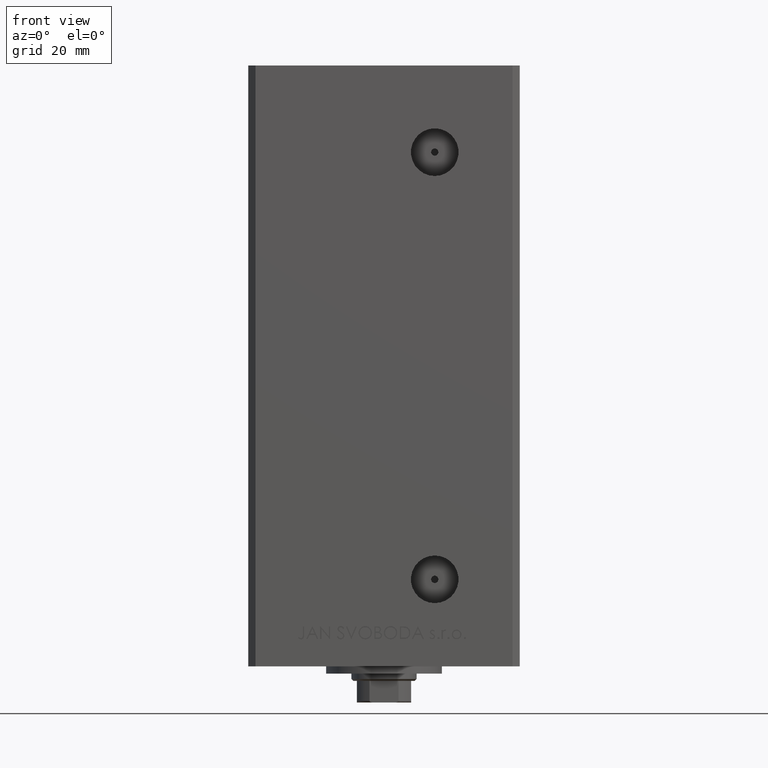
[diagram: clean part render]
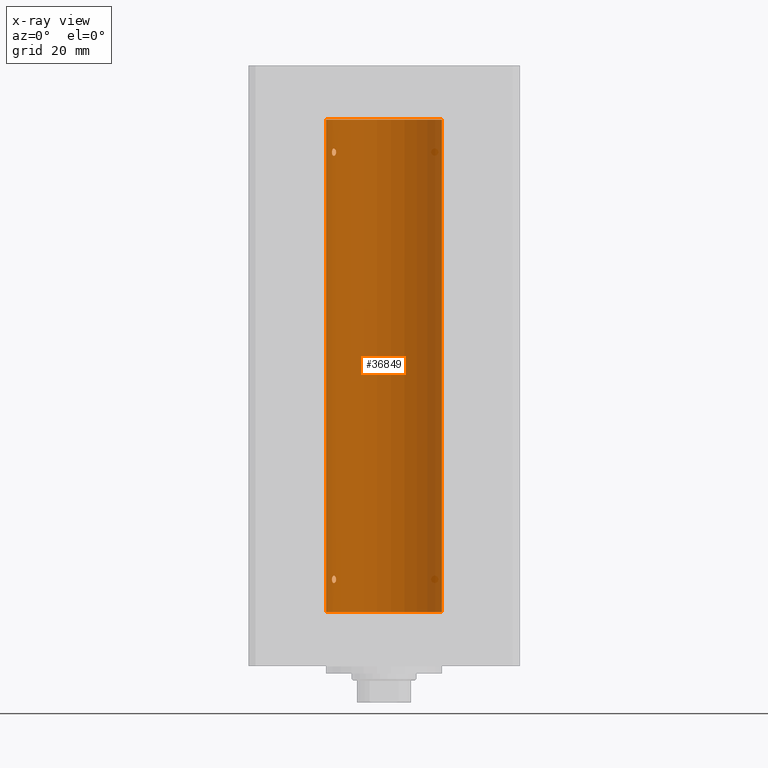
[diagram: x-ray — body ghosted, one internal face saturated and labeled with its STEP entity id]
A machine part, front view, then the same camera in x-ray: the body is ghosted and one INTERNAL B-rep face — a face not visible from any outside direction — is saturated and labeled: STEP entity #36849.
In plain terms, the highlighted cylindrical surface (partial cylindrical patch) has radius 16 mm, axis along (-0, -0, -1).
Its self-contained STEP definition (entity closure, byte-faithful):
#208 = CARTESIAN_POINT ( 'NONE',  ( -13.77582987033441952, 8.139210687602698613, 8.002110545841825129 ) ) ;
#550 = CARTESIAN_POINT ( 'NONE',  ( -13.77582987033440709, 8.139210687602719929, 126.0021105458418162 ) ) ;
#632 = EDGE_CURVE ( 'NONE', #44470, #22359, #10992, .T. ) ;
#900 = CARTESIAN_POINT ( 'NONE',  ( -14.27521483392928836, 7.227035590538638310, 127.6478598706881371 ) ) ;
#1064 = CARTESIAN_POINT ( 'NONE',  ( -13.22875655532296335, 8.999999999999982236, 9.000000000000007105 ) ) ;
#1297 = B_SPLINE_CURVE_WITH_KNOTS ( 'NONE', 3,
 ( #8946, #42834, #36054, #43326, #13210, #23764, #24253, #28275, #43076, #35308, #43819, #900, #2137, #37286, #6675, #5934 ),
 .UNSPECIFIED., .F., .F.,
 ( 4, 2, 2, 2, 2, 2, 2, 4 ),
 ( 0.003377672193071779884, 0.003799209865779855366, 0.004220747538487930849, 0.005063822883904134722, 0.005485360556612237093, 0.005906898229320339463, 0.006328435902028442701, 0.006749973574736545072 ),
 .UNSPECIFIED. ) ;
#1443 = CARTESIAN_POINT ( 'NONE',  ( -13.22875655532296513, 8.999999999999982236, 8.929565622361650412 ) ) ;
#1938 = CARTESIAN_POINT ( 'NONE',  ( -13.49759407097375608, 8.592283911330213186, 8.184099152127679133 ) ) ;
#2137 = CARTESIAN_POINT ( 'NONE',  ( -14.31650799088418147, 7.144337649771908438, 127.5355226273736662 ) ) ;
#2186 = CARTESIAN_POINT ( 'NONE',  ( -13.25390108270226364, 8.962947079338375644, 8.721435762358465738 ) ) ;
#2439 = CARTESIAN_POINT ( 'NONE',  ( -16.00000000000000000, 0.000000000000000000, 136.0000000000000000 ) ) ;
#2724 = EDGE_CURVE ( 'NONE', #21163, #9814, #1297, .T. ) ;
#2840 = VERTEX_POINT ( 'NONE', #42046 ) ;
#3609 = DIRECTION ( 'NONE',  ( 1.000000000000000000, 0.000000000000000000, 0.000000000000000000 ) ) ;
#3992 = CARTESIAN_POINT ( 'NONE',  ( -14.27547848986623258, 7.226527013162171720, 8.352555730181538962 ) ) ;
#4100 = CARTESIAN_POINT ( 'NONE',  ( -14.31650799088419213, 7.144337649771898668, 9.535522627373698157 ) ) ;
#4150 = DIRECTION ( 'NONE',  ( -0.000000000000000000, -0.000000000000000000, -1.000000000000000000 ) ) ;
#4281 = ORIENTED_EDGE ( 'NONE', *, *, #20996, .F. ) ;
#4335 = CARTESIAN_POINT ( 'NONE',  ( -14.11621438951177687, 7.533308783217008475, 126.1065710718394826 ) ) ;
#4730 = CARTESIAN_POINT ( 'NONE',  ( -14.11621438951178575, 7.533308783216997817, 8.106571071839523412 ) ) ;
#5011 = ORIENTED_EDGE ( 'NONE', *, *, #38640, .F. ) ;
#5934 = CARTESIAN_POINT ( 'NONE',  ( -14.38749456993815912, 6.999999999999998224, 127.0000000000000000 ) ) ;
#6124 = CARTESIAN_POINT ( 'NONE',  ( -14.38749456993815912, 6.999999999999998224, 127.0000000000000000 ) ) ;
#6675 = CARTESIAN_POINT ( 'NONE',  ( -14.38749456993815734, 6.999999999999997335, 127.1426254415242454 ) ) ;
#6696 = LINE ( 'NONE', #8422, #31408 ) ;
#6752 = EDGE_CURVE ( 'NONE', #30185, #45196, #45241, .T. ) ;
#7040 = VECTOR ( 'NONE', #12888, 1000.000000000000000 ) ;
#7615 = CARTESIAN_POINT ( 'NONE',  ( -14.17528142432533755, 7.421143801852455368, 126.1739430735386520 ) ) ;
#7827 = CARTESIAN_POINT ( 'NONE',  ( -14.38749456993815912, 6.999999999999998224, 127.0000000000000000 ) ) ;
#8013 = CARTESIAN_POINT ( 'NONE',  ( -13.56386909142670660, 8.487613976483618927, 8.118224297996086136 ) ) ;
#8113 = CARTESIAN_POINT ( 'NONE',  ( -13.22875655532295802, 8.999999999999996447, 127.0000000000000000 ) ) ;
#8261 = CARTESIAN_POINT ( 'NONE',  ( -14.38749456993816445, 6.999999999999982236, 8.857147409635420132 ) ) ;
#8361 = CARTESIAN_POINT ( 'NONE',  ( -14.31660136508398828, 7.144151923086063505, 126.4646217954444580 ) ) ;
#8422 = CARTESIAN_POINT ( 'NONE',  ( -16.00000000000000000, 0.000000000000000000, 136.0000000000000000 ) ) ;
#8505 = CARTESIAN_POINT ( 'NONE',  ( -14.31660136508400072, 7.144151923086045741, 8.464621795444484675 ) ) ;
#8946 = CARTESIAN_POINT ( 'NONE',  ( -13.22875655532295802, 8.999999999999996447, 127.0000000000000000 ) ) ;
#9814 = VERTEX_POINT ( 'NONE', #7827 ) ;
#9987 = CARTESIAN_POINT ( 'NONE',  ( -13.26838749541401263, 8.941532915076029653, 8.656217793921380022 ) ) ;
#10990 = FACE_OUTER_BOUND ( 'NONE', #43397, .T. ) ;
#10992 = B_SPLINE_CURVE_WITH_KNOTS ( 'NONE', 3,
 ( #38369, #8261, #23810, #8505, #3992, #19309, #4730, #20047, #35358, #208, #46168, #8013, #1938, #47889, #33081, #9987, #2186, #36833, #1443, #13499 ),
 .UNSPECIFIED., .F., .F.,
 ( 4, 2, 2, 2, 2, 2, 2, 2, 2, 4 ),
 ( 0.000000000000000000, 0.0004222090241339719434, 0.0008444180482679438868, 0.001266627072401915830, 0.001688836096535887774, 0.002111045120669859717, 0.002533254144803831660, 0.002955463168937803604, 0.003166567681004789359, 0.003377672193071775547 ),
 .UNSPECIFIED. ) ;
#11631 = CARTESIAN_POINT ( 'NONE',  ( -13.91838063522421010, 7.892966471903945624, 125.9981483133086897 ) ) ;
#11886 = CARTESIAN_POINT ( 'NONE',  ( -13.55800260393082901, 8.498809056167502263, 9.903643446210180556 ) ) ;
#12622 = CARTESIAN_POINT ( 'NONE',  ( -14.27521483392929902, 7.227035590538620546, 9.647859870688199280 ) ) ;
#12888 = DIRECTION ( 'NONE',  ( -0.000000000000000000, -0.000000000000000000, -1.000000000000000000 ) ) ;
#13210 = CARTESIAN_POINT ( 'NONE',  ( -13.37741691572086111, 8.778212469423007036, 127.6408828602271512 ) ) ;
#13350 = DIRECTION ( 'NONE',  ( 1.000000000000000000, 0.000000000000000000, 0.000000000000000000 ) ) ;
#13499 = CARTESIAN_POINT ( 'NONE',  ( -13.22875655532296335, 8.999999999999982236, 9.000000000000007105 ) ) ;
#13582 = DIRECTION ( 'NONE',  ( -1.000000000000000000, 0.000000000000000000, 0.000000000000000000 ) ) ;
#14389 = CIRCLE ( 'NONE', #15214, 16.00000000000000000 ) ;
#15214 = AXIS2_PLACEMENT_3D ( 'NONE', #46522, #30478, #3609 ) ;
#16308 = CARTESIAN_POINT ( 'NONE',  ( -14.38749456993816800, 6.999999999999984013, 9.000000000000007105 ) ) ;
#16822 = B_SPLINE_CURVE_WITH_KNOTS ( 'NONE', 3,
 ( #1064, #19170, #46268, #19419, #27693, #11886, #31706, #46027, #27448, #30716, #19660, #12622, #4100, #46764, #20150, #31458 ),
 .UNSPECIFIED., .F., .F.,
 ( 4, 2, 2, 2, 2, 2, 2, 4 ),
 ( 0.003377672193071775547, 0.003799209865779873581, 0.004220747538487971615, 0.005063822883904167682, 0.005485360556612266583, 0.005906898229320366352, 0.006328435902028466120, 0.006749973574736565021 ),
 .UNSPECIFIED. ) ;
#17342 = CARTESIAN_POINT ( 'NONE',  ( 0.000000000000000000, 0.000000000000000000, 136.0000000000000000 ) ) ;
#17667 = CARTESIAN_POINT ( 'NONE',  ( -14.38749456993816267, 6.999999999999999112, 126.8571474096354450 ) ) ;
#19111 = CARTESIAN_POINT ( 'NONE',  ( 16.00000000000000000, 1.959434878635765131E-15, 136.0000000000000000 ) ) ;
#19170 = CARTESIAN_POINT ( 'NONE',  ( -13.22875655532296335, 8.999999999999978684, 9.140644760917750133 ) ) ;
#19309 = CARTESIAN_POINT ( 'NONE',  ( -14.17528142432534288, 7.421143801852442934, 8.173943073538671555 ) ) ;
#19409 = CARTESIAN_POINT ( 'NONE',  ( -13.49759407097375075, 8.592283911330223845, 126.1840991521276862 ) ) ;
#19419 = CARTESIAN_POINT ( 'NONE',  ( -13.32457971225033866, 8.857769707964637362, 9.531999662746560631 ) ) ;
#19650 = CARTESIAN_POINT ( 'NONE',  ( -13.37674940693422876, 8.779234808442867077, 126.3602441571267718 ) ) ;
#19660 = CARTESIAN_POINT ( 'NONE',  ( -14.17576283486775779, 7.420212263225971050, 9.825253034304363808 ) ) ;
#19711 = EDGE_CURVE ( 'NONE', #30185, #46439, #28690, .T. ) ;
#20047 = CARTESIAN_POINT ( 'NONE',  ( -13.98699950016873039, 7.770591669637105348, 8.018476816648488992 ) ) ;
#20150 = CARTESIAN_POINT ( 'NONE',  ( -14.38749456993816978, 6.999999999999985789, 9.142625441524216967 ) ) ;
#20996 = EDGE_CURVE ( 'NONE', #22359, #44470, #16822, .T. ) ;
#21133 = CARTESIAN_POINT ( 'NONE',  ( 0.000000000000000000, 0.000000000000000000, 136.0000000000000000 ) ) ;
#21163 = VERTEX_POINT ( 'NONE', #42500 ) ;
#22359 = VERTEX_POINT ( 'NONE', #31889 ) ;
#23667 = CARTESIAN_POINT ( 'NONE',  ( -13.22875655532295625, 8.999999999999994671, 126.9295656223616220 ) ) ;
#23764 = CARTESIAN_POINT ( 'NONE',  ( -13.55800260393081835, 8.498809056167509368, 127.9036434462101681 ) ) ;
#23810 = CARTESIAN_POINT ( 'NONE',  ( -14.37250282441144655, 7.031013007322923336, 8.716856996037272154 ) ) ;
#24253 = CARTESIAN_POINT ( 'NONE',  ( -13.70792461986390798, 8.256614593260307444, 127.9966215356423191 ) ) ;
#25314 = CARTESIAN_POINT ( 'NONE',  ( 16.00000000000000000, 1.959434878635765131E-15, 0.000000000000000000 ) ) ;
#26453 = CARTESIAN_POINT ( 'NONE',  ( -13.26838749541400908, 8.941532915076043864, 126.6562177939213854 ) ) ;
#27448 = CARTESIAN_POINT ( 'NONE',  ( -13.98878315975730224, 7.767347947480332415, 9.980546143261287639 ) ) ;
#27539 = ORIENTED_EDGE ( 'NONE', *, *, #44962, .T. ) ;
#27693 = CARTESIAN_POINT ( 'NONE',  ( -13.37741691572086467, 8.778212469422998154, 9.640882860227108608 ) ) ;
#28275 = CARTESIAN_POINT ( 'NONE',  ( -13.91892506969882071, 7.891973478508848672, 128.0015521226323472 ) ) ;
#28690 = LINE ( 'NONE', #36222, #7040 ) ;
#29243 = EDGE_LOOP ( 'NONE', ( #33112, #4281 ) ) ;
#30185 = VERTEX_POINT ( 'NONE', #19111 ) ;
#30464 = CARTESIAN_POINT ( 'NONE',  ( -13.23400746336172240, 8.992294519018086518, 126.8578145590230406 ) ) ;
#30478 = DIRECTION ( 'NONE',  ( -0.000000000000000000, 0.000000000000000000, 1.000000000000000000 ) ) ;
#30716 = CARTESIAN_POINT ( 'NONE',  ( -14.11618354197462644, 7.533333301880464461, 9.893207651933423108 ) ) ;
#31408 = VECTOR ( 'NONE', #4150, 1000.000000000000000 ) ;
#31448 = CARTESIAN_POINT ( 'NONE',  ( -13.25390108270225120, 8.962947079338391632, 126.7214357623584817 ) ) ;
#31458 = CARTESIAN_POINT ( 'NONE',  ( -14.38749456993816800, 6.999999999999984013, 9.000000000000007105 ) ) ;
#31706 = CARTESIAN_POINT ( 'NONE',  ( -13.70792461986391864, 8.256614593260295010, 9.996621535642280065 ) ) ;
#31889 = CARTESIAN_POINT ( 'NONE',  ( -13.22875655532296335, 8.999999999999982236, 9.000000000000007105 ) ) ;
#32433 = DIRECTION ( 'NONE',  ( -0.000000000000000000, 0.000000000000000000, 1.000000000000000000 ) ) ;
#32985 = CARTESIAN_POINT ( 'NONE',  ( -14.37250282441143945, 7.031013007322939323, 126.7168569960372935 ) ) ;
#33081 = CARTESIAN_POINT ( 'NONE',  ( -13.32426099938365915, 8.858246960865836073, 8.468874877532975631 ) ) ;
#33112 = ORIENTED_EDGE ( 'NONE', *, *, #632, .F. ) ;
#34318 = FACE_BOUND ( 'NONE', #37953, .T. ) ;
#34960 = CARTESIAN_POINT ( 'NONE',  ( -13.32426099938365383, 8.858246960865844954, 126.4688748775329969 ) ) ;
#35308 = CARTESIAN_POINT ( 'NONE',  ( -14.11618354197461400, 7.533333301880474231, 127.8932076519334373 ) ) ;
#35358 = CARTESIAN_POINT ( 'NONE',  ( -13.91838063522421542, 7.892966471903923420, 7.998148313308686141 ) ) ;
#36054 = CARTESIAN_POINT ( 'NONE',  ( -13.24976519864029179, 8.969293778684573226, 127.2815352263351514 ) ) ;
#36222 = CARTESIAN_POINT ( 'NONE',  ( 16.00000000000000000, 1.959434878635765131E-15, 136.0000000000000000 ) ) ;
#36419 = AXIS2_PLACEMENT_3D ( 'NONE', #21133, #32433, #13350 ) ;
#36833 = CARTESIAN_POINT ( 'NONE',  ( -13.23400746336173484, 8.992294519018072307, 8.857814559023026391 ) ) ;
#36849 = ADVANCED_FACE ( 'NONE', ( #10990, #40681, #34318 ), #38077, .F. ) ;
#37286 = CARTESIAN_POINT ( 'NONE',  ( -14.37227256866306213, 7.031482256185711321, 127.2844572409764794 ) ) ;
#37296 = B_SPLINE_CURVE_WITH_KNOTS ( 'NONE', 3,
 ( #6124, #17667, #32985, #8361, #42242, #7615, #4335, #46018, #11631, #550, #42740, #46758, #19409, #19650, #34960, #26453, #31448, #30464, #23667, #8113 ),
 .UNSPECIFIED., .F., .F.,
 ( 4, 2, 2, 2, 2, 2, 2, 2, 2, 4 ),
 ( 0.000000000000000000, 0.0004222090241339633240, 0.0008444180482679266480, 0.001266627072401889809, 0.001688836096535853296, 0.002111045120669816783, 0.002533254144803779619, 0.002955463168937742888, 0.003166567681004761603, 0.003377672193071779884 ),
 .UNSPECIFIED. ) ;
#37953 = EDGE_LOOP ( 'NONE', ( #42096, #39923 ) ) ;
#38077 = CYLINDRICAL_SURFACE ( 'NONE', #40753, 16.00000000000000000 ) ;
#38369 = CARTESIAN_POINT ( 'NONE',  ( -14.38749456993816800, 6.999999999999984013, 9.000000000000007105 ) ) ;
#38640 = EDGE_CURVE ( 'NONE', #46439, #2840, #14389, .T. ) ;
#39923 = ORIENTED_EDGE ( 'NONE', *, *, #2724, .F. ) ;
#40681 = FACE_BOUND ( 'NONE', #29243, .T. ) ;
#40753 = AXIS2_PLACEMENT_3D ( 'NONE', #17342, #49398, #13582 ) ;
#42046 = CARTESIAN_POINT ( 'NONE',  ( -16.00000000000000000, 0.000000000000000000, 0.000000000000000000 ) ) ;
#42096 = ORIENTED_EDGE ( 'NONE', *, *, #48839, .F. ) ;
#42242 = CARTESIAN_POINT ( 'NONE',  ( -14.27547848986622370, 7.226527013162184154, 126.3525557301815354 ) ) ;
#42500 = CARTESIAN_POINT ( 'NONE',  ( -13.22875655532295802, 8.999999999999996447, 127.0000000000000000 ) ) ;
#42740 = CARTESIAN_POINT ( 'NONE',  ( -13.70481462797717676, 8.258098555717509726, 126.0259974772911562 ) ) ;
#42834 = CARTESIAN_POINT ( 'NONE',  ( -13.22875655532296157, 8.999999999999994671, 127.1406447609177661 ) ) ;
#43076 = CARTESIAN_POINT ( 'NONE',  ( -13.98878315975728803, 7.767347947480344850, 127.9805461432612645 ) ) ;
#43326 = CARTESIAN_POINT ( 'NONE',  ( -13.32457971225032622, 8.857769707964648020, 127.5319996627465571 ) ) ;
#43397 = EDGE_LOOP ( 'NONE', ( #48834, #45754, #27539, #5011 ) ) ;
#43819 = CARTESIAN_POINT ( 'NONE',  ( -14.17576283486774891, 7.420212263225987925, 127.8252530343043958 ) ) ;
#44470 = VERTEX_POINT ( 'NONE', #16308 ) ;
#44962 = EDGE_CURVE ( 'NONE', #45196, #2840, #6696, .T. ) ;
#45196 = VERTEX_POINT ( 'NONE', #2439 ) ;
#45241 = CIRCLE ( 'NONE', #36419, 16.00000000000000000 ) ;
#45754 = ORIENTED_EDGE ( 'NONE', *, *, #6752, .T. ) ;
#46018 = CARTESIAN_POINT ( 'NONE',  ( -13.98699950016872151, 7.770591669637114229, 126.0184768166484588 ) ) ;
#46027 = CARTESIAN_POINT ( 'NONE',  ( -13.91892506969883669, 7.891973478508838902, 10.00155212263245375 ) ) ;
#46168 = CARTESIAN_POINT ( 'NONE',  ( -13.70481462797718386, 8.258098555717490186, 8.025997477291141990 ) ) ;
#46268 = CARTESIAN_POINT ( 'NONE',  ( -13.24976519864029889, 8.969293778684560792, 9.281535226335167366 ) ) ;
#46439 = VERTEX_POINT ( 'NONE', #25314 ) ;
#46522 = CARTESIAN_POINT ( 'NONE',  ( 0.000000000000000000, 0.000000000000000000, 0.000000000000000000 ) ) ;
#46758 = CARTESIAN_POINT ( 'NONE',  ( -13.56386909142669772, 8.487613976483636691, 126.1182242979960790 ) ) ;
#46764 = CARTESIAN_POINT ( 'NONE',  ( -14.37227256866306746, 7.031482256185695334, 9.284457240976488279 ) ) ;
#47889 = CARTESIAN_POINT ( 'NONE',  ( -13.37674940693423054, 8.779234808442856419, 8.360244157126787812 ) ) ;
#48834 = ORIENTED_EDGE ( 'NONE', *, *, #19711, .F. ) ;
#48839 = EDGE_CURVE ( 'NONE', #9814, #21163, #37296, .T. ) ;
#49398 = DIRECTION ( 'NONE',  ( -0.000000000000000000, -0.000000000000000000, -1.000000000000000000 ) ) ;